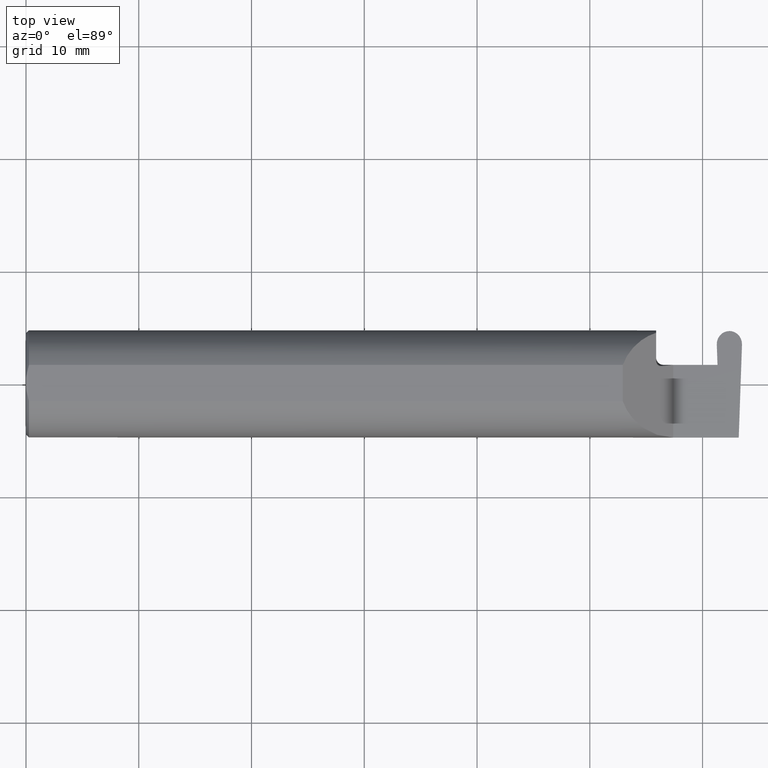
[diagram: clean part render]
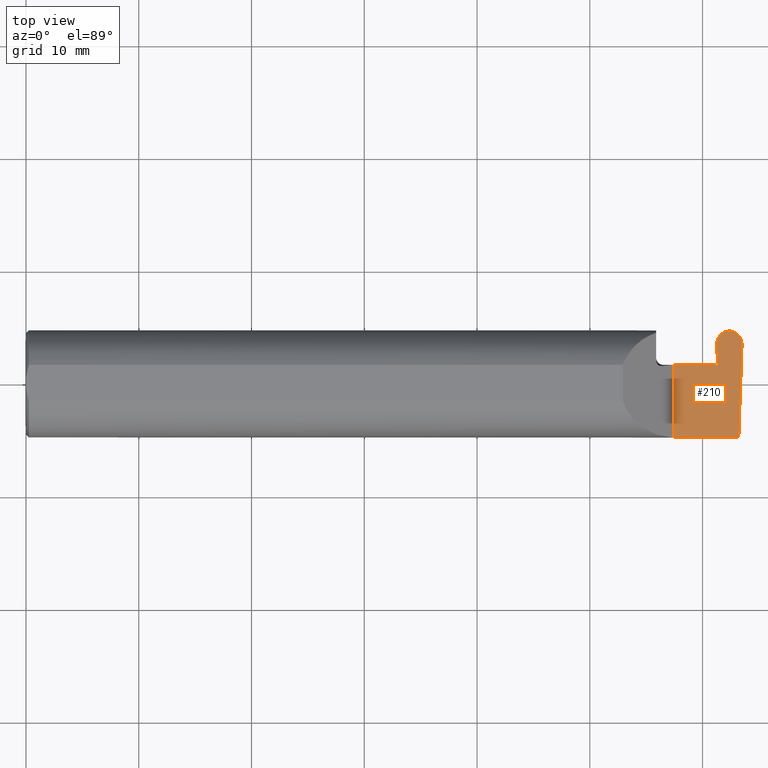
[diagram: same view with one face highlighted and labeled with its STEP entity id]
A machine part, top view. The second image highlights one B-rep face of the part: STEP entity #210.
In plain terms, the highlighted planar face has unit normal (-0, 0, -1).
Its self-contained STEP definition (entity closure, byte-faithful):
#8 = ORIENTED_EDGE ( 'NONE', *, *, #26, .F. ) ;
#16 = CARTESIAN_POINT ( 'NONE',  ( 2.260000000000000231, -0.1873499999999999888, 2.939152317953647352E-17 ) ) ;
#17 = VERTEX_POINT ( 'NONE', #473 ) ;
#18 = EDGE_CURVE ( 'NONE', #592, #421, #639, .T. ) ;
#19 = LINE ( 'NONE', #27, #21 ) ;
#21 = VECTOR ( 'NONE', #640, 39.37007874015748143 ) ;
#26 = EDGE_CURVE ( 'NONE', #421, #620, #243, .T. ) ;
#27 = CARTESIAN_POINT ( 'NONE',  ( 2.411832552795360574, 0.1390138764844879860, 0.000000000000000000 ) ) ;
#28 = CARTESIAN_POINT ( 'NONE',  ( 2.200000000000000178, 0.06664999999999997315, 3.673940397442062580E-17 ) ) ;
#34 = ORIENTED_EDGE ( 'NONE', *, *, #262, .F. ) ;
#46 = EDGE_CURVE ( 'NONE', #373, #17, #100, .T. ) ;
#54 = DIRECTION ( 'NONE',  ( -0.03489949670249319069, -0.9993908270190959842, 0.000000000000000000 ) ) ;
#58 = CARTESIAN_POINT ( 'NONE',  ( 3.749399456654646757E-32, -0.1873499999999999610, 3.061616997868383634E-16 ) ) ;
#63 = EDGE_LOOP ( 'NONE', ( #610, #417, #221, #8, #351, #695, #34, #392, #231 ) ) ;
#95 = EDGE_CURVE ( 'NONE', #245, #592, #213, .T. ) ;
#100 =( BOUNDED_CURVE ( )  B_SPLINE_CURVE ( 3, ( #363, #515, #181, #414 ),
 .UNSPECIFIED., .F., .F. ) 
 B_SPLINE_CURVE_WITH_KNOTS ( ( 4, 4 ),
 ( 3.057488531086357764, 4.656081685705083295 ),
 .UNSPECIFIED. ) 
 CURVE ( )  GEOMETRIC_REPRESENTATION_ITEM ( )  RATIONAL_B_SPLINE_CURVE ( ( 1.000000000000000000, 0.7981407609938078185, 0.7981407609938078185, 1.000000000000000000 ) ) 
 REPRESENTATION_ITEM ( '' )  );
#115 = VECTOR ( 'NONE', #681, 39.37007874015748143 ) ;
#176 = CARTESIAN_POINT ( 'NONE',  ( 2.499973137204639428, 0.1390138764844880415, 0.000000000000000000 ) ) ;
#179 = EDGE_CURVE ( 'NONE', #373, #370, #204, .T. ) ;
#181 = CARTESIAN_POINT ( 'NONE',  ( 2.410932386210230760, 0.1647912748130948291, 1.084111754673048372E-17 ) ) ;
#190 = CARTESIAN_POINT ( 'NONE',  ( 2.500873303789769686, 0.1647912748130947458, 3.031548046095857555E-18 ) ) ;
#196 = VECTOR ( 'NONE', #237, 39.37007874015748143 ) ;
#198 = PLANE ( 'NONE',  #465 ) ;
#204 = LINE ( 'NONE', #646, #206 ) ;
#206 = VECTOR ( 'NONE', #705, 39.37007874015748143 ) ;
#210 = ADVANCED_FACE ( 'NONE', ( #692 ), #198, .F. ) ;
#213 = LINE ( 'NONE', #644, #594 ) ;
#221 = ORIENTED_EDGE ( 'NONE', *, *, #435, .F. ) ;
#224 = EDGE_CURVE ( 'NONE', #586, #401, #564, .T. ) ;
#231 = ORIENTED_EDGE ( 'NONE', *, *, #389, .T. ) ;
#237 = DIRECTION ( 'NONE',  ( 1.000000000000000000, 6.448948547284692709E-16, 0.000000000000000000 ) ) ;
#241 = CARTESIAN_POINT ( 'NONE',  ( 2.456309424548497766, 0.1846500000000000363, 0.000000000000000000 ) ) ;
#243 = LINE ( 'NONE', #636, #115 ) ;
#245 = VERTEX_POINT ( 'NONE', #16 ) ;
#262 = EDGE_CURVE ( 'NONE', #401, #245, #405, .T. ) ;
#291 = CARTESIAN_POINT ( 'NONE',  ( 2.455496265451502236, 0.1846500000000000363, 0.000000000000000000 ) ) ;
#294 = CARTESIAN_POINT ( 'NONE',  ( 2.456309424548497766, 0.1846500000000000363, 0.000000000000000000 ) ) ;
#311 = CARTESIAN_POINT ( 'NONE',  ( 2.260000000000000231, 0.06664999999999991764, 2.939152317953647352E-17 ) ) ;
#312 = CARTESIAN_POINT ( 'NONE',  ( 2.500000000000000000, -0.2500000000000000555, 0.000000000000000000 ) ) ;
#350 = CARTESIAN_POINT ( 'NONE',  ( 2.488576259503493926, -0.1873499999999999888, 0.000000000000000000 ) ) ;
#351 = ORIENTED_EDGE ( 'NONE', *, *, #18, .F. ) ;
#363 = CARTESIAN_POINT ( 'NONE',  ( 2.455496265451502236, 0.1846500000000000363, 0.000000000000000000 ) ) ;
#370 = VERTEX_POINT ( 'NONE', #241 ) ;
#373 = VERTEX_POINT ( 'NONE', #291 ) ;
#389 = EDGE_CURVE ( 'NONE', #586, #370, #505, .T. ) ;
#392 = ORIENTED_EDGE ( 'NONE', *, *, #224, .F. ) ;
#401 = VERTEX_POINT ( 'NONE', #350 ) ;
#405 = LINE ( 'NONE', #58, #448 ) ;
#414 = CARTESIAN_POINT ( 'NONE',  ( 2.411899392914586659, 0.1370998259008695541, 0.000000000000000000 ) ) ;
#417 = ORIENTED_EDGE ( 'NONE', *, *, #46, .T. ) ;
#421 = VERTEX_POINT ( 'NONE', #677 ) ;
#435 = EDGE_CURVE ( 'NONE', #620, #17, #19, .T. ) ;
#448 = VECTOR ( 'NONE', #561, 39.37007874015748143 ) ;
#465 = AXIS2_PLACEMENT_3D ( 'NONE', #312, #554, #673 ) ;
#473 = CARTESIAN_POINT ( 'NONE',  ( 2.411899392914586659, 0.1370998259008695541, 0.000000000000000000 ) ) ;
#475 = CARTESIAN_POINT ( 'NONE',  ( 2.414359555045604289, 0.06664999999999991764, 0.000000000000000000 ) ) ;
#505 =( BOUNDED_CURVE ( )  B_SPLINE_CURVE ( 3, ( #517, #190, #638, #294 ),
 .UNSPECIFIED., .F., .F. ) 
 B_SPLINE_CURVE_WITH_KNOTS ( ( 4, 4 ),
 ( 1.627103621474502271, 3.225696776093220475 ),
 .UNSPECIFIED. ) 
 CURVE ( )  GEOMETRIC_REPRESENTATION_ITEM ( )  RATIONAL_B_SPLINE_CURVE ( ( 1.000000000000000000, 0.7981407609938095948, 0.7981407609938095948, 1.000000000000000000 ) ) 
 REPRESENTATION_ITEM ( '' )  );
#515 = CARTESIAN_POINT ( 'NONE',  ( 2.429140065301251372, 0.1846500000000001473, 8.611319954858366107E-18 ) ) ;
#517 = CARTESIAN_POINT ( 'NONE',  ( 2.499906297085412898, 0.1370998259008696096, 0.000000000000000000 ) ) ;
#554 = DIRECTION ( 'NONE',  ( -1.224646799147353947E-16, 0.000000000000000000, -1.000000000000000000 ) ) ;
#561 = DIRECTION ( 'NONE',  ( -1.000000000000000000, -0.000000000000000000, -0.000000000000000000 ) ) ;
#564 = LINE ( 'NONE', #176, #618 ) ;
#586 = VERTEX_POINT ( 'NONE', #699 ) ;
#592 = VERTEX_POINT ( 'NONE', #311 ) ;
#594 = VECTOR ( 'NONE', #654, 39.37007874015748143 ) ;
#610 = ORIENTED_EDGE ( 'NONE', *, *, #179, .F. ) ;
#618 = VECTOR ( 'NONE', #54, 39.37007874015748854 ) ;
#620 = VERTEX_POINT ( 'NONE', #475 ) ;
#636 = CARTESIAN_POINT ( 'NONE',  ( 2.414359555045604289, 0.06664999999999991764, 0.000000000000000000 ) ) ;
#638 = CARTESIAN_POINT ( 'NONE',  ( 2.482665624698748630, 0.1846499999999999808, 5.261345637967953601E-18 ) ) ;
#639 = LINE ( 'NONE', #28, #196 ) ;
#640 = DIRECTION ( 'NONE',  ( -0.03489949670249400948, 0.9993908270190959842, -0.000000000000000000 ) ) ;
#644 = CARTESIAN_POINT ( 'NONE',  ( 2.260000000000000231, -0.2500000000000000555, 2.939152317953647352E-17 ) ) ;
#646 = CARTESIAN_POINT ( 'NONE',  ( -3.937007874019685528E-05, 0.1846500000000000363, 0.000000000000000000 ) ) ;
#654 = DIRECTION ( 'NONE',  ( -0.000000000000000000, 1.000000000000000000, -0.000000000000000000 ) ) ;
#673 = DIRECTION ( 'NONE',  ( -1.000000000000000000, 0.000000000000000000, 1.224646799147353947E-16 ) ) ;
#677 = CARTESIAN_POINT ( 'NONE',  ( 2.405238904245578624, 0.06664999999999991764, 0.000000000000000000 ) ) ;
#681 = DIRECTION ( 'NONE',  ( 1.000000000000000000, -0.000000000000000000, -0.000000000000000000 ) ) ;
#692 = FACE_OUTER_BOUND ( 'NONE', #63, .T. ) ;
#695 = ORIENTED_EDGE ( 'NONE', *, *, #95, .F. ) ;
#699 = CARTESIAN_POINT ( 'NONE',  ( 2.499906297085412898, 0.1370998259008696096, 0.000000000000000000 ) ) ;
#705 = DIRECTION ( 'NONE',  ( 1.000000000000000000, -0.000000000000000000, -0.000000000000000000 ) ) ;